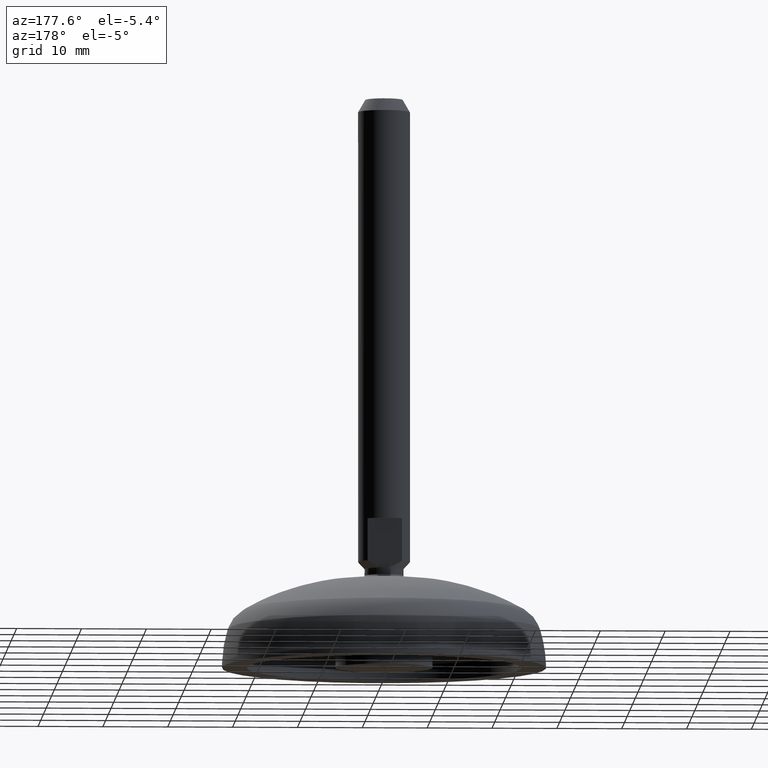
[diagram: clean part render]
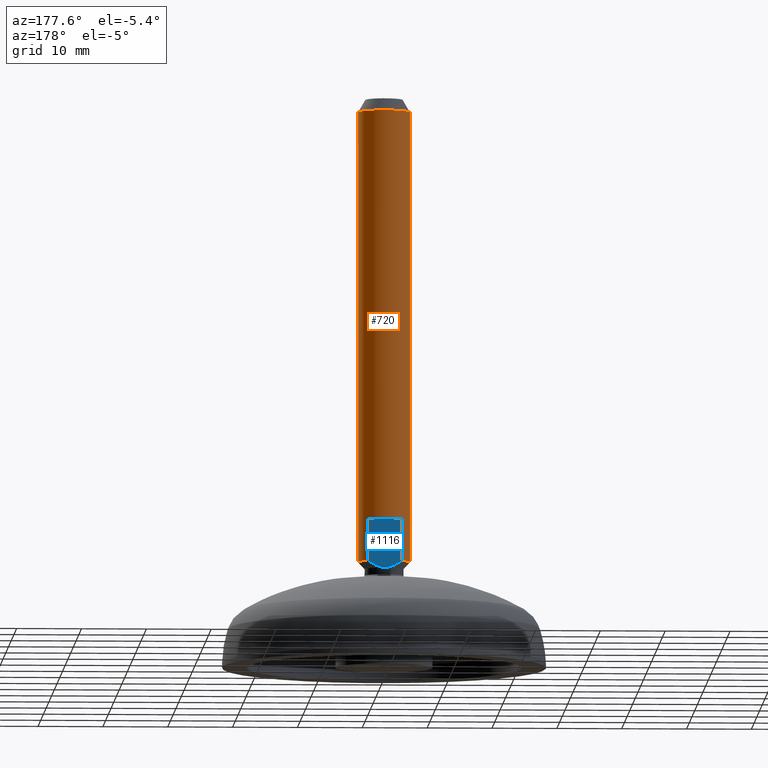
[diagram: same view with the hole feature highlighted: cylindrical wall and planar end face, labeled with their STEP entity ids]
A machine part, auxiliary view. The highlighted faces form one hole feature of diameter 8 mm: the cylindrical wall (entity #720, orange) and its adjacent planar end face (entity #1116, blue) — they share a circular edge in the B-rep.
Wall:
#595=CARTESIAN_POINT('',(0.000044111296350,-0.000003166976640,85.968672221026281));
#596=DIRECTION('',(-0.000000300065037,0.0,-0.999999999999955));
#597=DIRECTION('',(-0.999999999999955,0.0,0.000000300065037));
#598=AXIS2_PLACEMENT_3D('',#595,#596,#597);
#599=CYLINDRICAL_SURFACE('',#598,3.999998476067683);
#600=CARTESIAN_POINT('',(-3.999991971773162,-0.000003166976640,16.373945335259531));
#601=VERTEX_POINT('',#600);
#602=CARTESIAN_POINT('',(-3.999954364771156,-0.000003166976640,85.968673411285963));
#603=VERTEX_POINT('',#602);
#604=CARTESIAN_POINT('',(-3.999975247715812,-0.000003166976640,16.373945335254504));
#605=DIRECTION('',(0.000000300065037,0.0,0.999999999999955));
#606=VECTOR('',#605,69.594728076034585);
#607=LINE('',#604,#606);
#608=EDGE_CURVE('',#601,#603,#607,.T.);
#609=ORIENTED_EDGE('',*,*,#608,.F.);
#610=CARTESIAN_POINT('',(-2.645763705205930,-3.000003166976640,16.373944928902979));
#611=VERTEX_POINT('',#610);
#612=CARTESIAN_POINT('',(0.000023228351704,-0.000003166976640,16.373944134994833));
#613=DIRECTION('',(-0.000000300065037,0.0,-0.999999999999955));
#614=DIRECTION('',(-0.999999999999955,0.0,0.000000300065037));
#615=AXIS2_PLACEMENT_3D('',#612,#613,#614);
#616=CIRCLE('',#615,4.000023562153722);
#617=EDGE_CURVE('',#611,#601,#616,.T.);
#618=ORIENTED_EDGE('',*,*,#617,.F.);
#619=CARTESIAN_POINT('',(-2.645758212562657,-3.000003166976640,22.873924181436315));
#620=VERTEX_POINT('',#619);
#621=CARTESIAN_POINT('',(-2.645763705205931,-3.000003166976640,16.373944928902979));
#622=CARTESIAN_POINT('',(-2.645763476346413,-3.000003166976640,16.644776720555505));
#623=CARTESIAN_POINT('',(-2.645763247486892,-3.000003166976640,16.915608512208014));
#624=CARTESIAN_POINT('',(-2.645763018627362,-3.000003166976640,17.186440303860529));
#625=CARTESIAN_POINT('',(-2.645761416606073,-3.000003166976640,19.082268263052459));
#626=CARTESIAN_POINT('',(-2.645759814584460,-3.000003166976640,20.978096222244375));
#627=CARTESIAN_POINT('',(-2.645758212562481,-3.000003166976640,22.873924181436315));
#628=B_SPLINE_CURVE_WITH_KNOTS('',3,(#621,#622,#623,#624,#625,#626,#627),.UNSPECIFIED.,.F.,.U.,(4,3,4),(0.007187548279914,0.008000043654872,0.013687527532449),.UNSPECIFIED.);
#629=EDGE_CURVE('',#611,#620,#628,.T.);
#630=ORIENTED_EDGE('',*,*,#629,.T.);
#631=CARTESIAN_POINT('',(2.645807595618447,-3.000003166976640,22.873924181436315));
#632=VERTEX_POINT('',#631);
#633=CARTESIAN_POINT('',(0.000025178768036,-0.000003166976623,22.873924181436298));
#634=DIRECTION('',(0.0,0.0,1.0));
#635=DIRECTION('',(0.0,-1.0,0.0));
#636=AXIS2_PLACEMENT_3D('',#633,#634,#635);
#637=CIRCLE('',#636,4.000021219173773);
#638=EDGE_CURVE('',#620,#632,#637,.T.);
#639=ORIENTED_EDGE('',*,*,#638,.T.);
#640=CARTESIAN_POINT('',(2.645810161909338,-3.000003166976640,16.373943341086665));
#641=VERTEX_POINT('',#640);
#642=CARTESIAN_POINT('',(2.645808570098528,-3.000003166976640,22.873924181436536));
#643=CARTESIAN_POINT('',(2.645809034377124,-3.000003166976640,20.978096293106212));
#644=CARTESIAN_POINT('',(2.645809498655344,-3.000003166976640,19.082268404775878));
#645=CARTESIAN_POINT('',(2.645809962933240,-3.000003166976640,17.186440516445550));
#646=CARTESIAN_POINT('',(2.645810029258613,-3.000003166976640,16.915608124659258));
#647=CARTESIAN_POINT('',(2.645810095583978,-3.000003166976640,16.644775732872965));
#648=CARTESIAN_POINT('',(2.645810161909338,-3.000003166976640,16.373943341086665));
#649=B_SPLINE_CURVE_WITH_KNOTS('',3,(#642,#643,#644,#645,#646,#647,#648),.UNSPECIFIED.,.F.,.U.,(4,3,4),(0.007187546479511,0.012875030144503,0.013687527319862),.UNSPECIFIED.);
#650=EDGE_CURVE('',#632,#641,#649,.T.);
#651=ORIENTED_EDGE('',*,*,#650,.T.);
#652=CARTESIAN_POINT('',(2.645810161909338,2.999996833023360,16.373943341086665));
#653=VERTEX_POINT('',#652);
#654=CARTESIAN_POINT('',(0.000023228351704,-0.000003166976640,16.373944134994833));
#655=DIRECTION('',(-0.000000300065037,0.0,-0.999999999999955));
#656=DIRECTION('',(-0.999999999999955,0.0,0.000000300065037));
#657=AXIS2_PLACEMENT_3D('',#654,#655,#656);
#658=CIRCLE('',#657,4.000023562153722);
#659=EDGE_CURVE('',#653,#641,#658,.T.);
#660=ORIENTED_EDGE('',*,*,#659,.F.);
#661=CARTESIAN_POINT('',(2.645807595618447,2.999996833023360,22.873924181436315));
#662=VERTEX_POINT('',#661);
#663=CARTESIAN_POINT('',(2.645808570098528,2.999996833023360,22.873924181436536));
#664=CARTESIAN_POINT('',(2.645809034377124,2.999996833023360,20.978096293106212));
#665=CARTESIAN_POINT('',(2.645809498655344,2.999996833023360,19.082268404775874));
#666=CARTESIAN_POINT('',(2.645809962933240,2.999996833023360,17.186440516445536));
#667=CARTESIAN_POINT('',(2.645810029258613,2.999996833023360,16.915608124659251));
#668=CARTESIAN_POINT('',(2.645810095583978,2.999996833023360,16.644775732872965));
#669=CARTESIAN_POINT('',(2.645810161909338,2.999996833023360,16.373943341086679));
#670=B_SPLINE_CURVE_WITH_KNOTS('',3,(#663,#664,#665,#666,#667,#668,#669),.UNSPECIFIED.,.F.,.U.,(4,3,4),(0.007187546479511,0.012875030144503,0.013687527319862),.UNSPECIFIED.);
#671=EDGE_CURVE('',#662,#653,#670,.T.);
#672=ORIENTED_EDGE('',*,*,#671,.F.);
#673=CARTESIAN_POINT('',(-2.645758212562657,2.999996833023360,22.873924181436315));
#674=VERTEX_POINT('',#673);
#675=CARTESIAN_POINT('',(0.000025178768036,-0.000003166976623,22.873924181436298));
#676=DIRECTION('',(0.0,0.0,-1.0));
#677=DIRECTION('',(0.0,1.0,0.0));
#678=AXIS2_PLACEMENT_3D('',#675,#676,#677);
#679=CIRCLE('',#678,4.000021219173773);
#680=EDGE_CURVE('',#674,#662,#679,.T.);
#681=ORIENTED_EDGE('',*,*,#680,.F.);
#682=CARTESIAN_POINT('',(-2.645763705207422,2.999996833023360,16.373944928903406));
#683=VERTEX_POINT('',#682);
#684=CARTESIAN_POINT('',(-2.645763705205931,2.999996833023360,16.373944928903406));
#685=CARTESIAN_POINT('',(-2.645763476346413,2.999996833023360,16.644776720555782));
#686=CARTESIAN_POINT('',(-2.645763247486892,2.999996833023360,16.915608512208149));
#687=CARTESIAN_POINT('',(-2.645763018627362,2.999996833023360,17.186440303860529));
#688=CARTESIAN_POINT('',(-2.645761416606073,2.999996833023360,19.082268263052448));
#689=CARTESIAN_POINT('',(-2.645759814584460,2.999996833023360,20.978096222244375));
#690=CARTESIAN_POINT('',(-2.645758212562481,2.999996833023360,22.873924181436315));
#691=B_SPLINE_CURVE_WITH_KNOTS('',3,(#684,#685,#686,#687,#688,#689,#690),.UNSPECIFIED.,.F.,.U.,(4,3,4),(0.007187548279914,0.008000043654872,0.013687527532449),.UNSPECIFIED.);
#692=EDGE_CURVE('',#683,#674,#691,.T.);
#693=ORIENTED_EDGE('',*,*,#692,.F.);
#694=CARTESIAN_POINT('',(0.000023228351704,-0.000003166976640,16.373944134994833));
#695=DIRECTION('',(-0.000000300065037,0.0,-0.999999999999955));
#696=DIRECTION('',(-0.999999999999955,0.0,0.000000300065037));
#697=AXIS2_PLACEMENT_3D('',#694,#695,#696);
#698=CIRCLE('',#697,4.000023562153722);
#699=EDGE_CURVE('',#601,#683,#698,.T.);
#700=ORIENTED_EDGE('',*,*,#699,.F.);
#701=ORIENTED_EDGE('',*,*,#608,.T.);
#702=CARTESIAN_POINT('',(4.000042587363851,-0.000003166976640,85.968671010766585));
#703=VERTEX_POINT('',#702);
#704=CARTESIAN_POINT('',(0.000044111296347,-0.000003166976640,85.968672211026274));
#705=DIRECTION('',(-0.000000300065037,0.0,-0.999999999999955));
#706=DIRECTION('',(-0.999999999999955,0.0,0.000000300065037));
#707=AXIS2_PLACEMENT_3D('',#704,#705,#706);
#708=CIRCLE('',#707,3.999998476067683);
#709=EDGE_CURVE('',#603,#703,#708,.T.);
#710=ORIENTED_EDGE('',*,*,#709,.T.);
#711=CARTESIAN_POINT('',(0.000044111296347,-0.000003166976640,85.968672211026274));
#712=DIRECTION('',(-0.000000300065037,0.0,-0.999999999999955));
#713=DIRECTION('',(-0.999999999999955,0.0,0.000000300065037));
#714=AXIS2_PLACEMENT_3D('',#711,#712,#713);
#715=CIRCLE('',#714,3.999998476067683);
#716=EDGE_CURVE('',#703,#603,#715,.T.);
#717=ORIENTED_EDGE('',*,*,#716,.T.);
#718=EDGE_LOOP('',(#609,#618,#630,#639,#651,#660,#672,#681,#693,#700,#701,#710,#717));
#719=FACE_OUTER_BOUND('',#718,.T.);
#720=ADVANCED_FACE('',(#719),#599,.T.);
End face:
#652=CARTESIAN_POINT('',(2.645810161909338,2.999996833023360,16.373943341086665));
#653=VERTEX_POINT('',#652);
#661=CARTESIAN_POINT('',(2.645807595618447,2.999996833023360,22.873924181436315));
#662=VERTEX_POINT('',#661);
#663=CARTESIAN_POINT('',(2.645808570098528,2.999996833023360,22.873924181436536));
#664=CARTESIAN_POINT('',(2.645809034377124,2.999996833023360,20.978096293106212));
#665=CARTESIAN_POINT('',(2.645809498655344,2.999996833023360,19.082268404775874));
#666=CARTESIAN_POINT('',(2.645809962933240,2.999996833023360,17.186440516445536));
#667=CARTESIAN_POINT('',(2.645810029258613,2.999996833023360,16.915608124659251));
#668=CARTESIAN_POINT('',(2.645810095583978,2.999996833023360,16.644775732872965));
#669=CARTESIAN_POINT('',(2.645810161909338,2.999996833023360,16.373943341086679));
#670=B_SPLINE_CURVE_WITH_KNOTS('',3,(#663,#664,#665,#666,#667,#668,#669),.UNSPECIFIED.,.F.,.U.,(4,3,4),(0.007187546479511,0.012875030144503,0.013687527319862),.UNSPECIFIED.);
#671=EDGE_CURVE('',#662,#653,#670,.T.);
#673=CARTESIAN_POINT('',(-2.645758212562657,2.999996833023360,22.873924181436315));
#674=VERTEX_POINT('',#673);
#682=CARTESIAN_POINT('',(-2.645763705207422,2.999996833023360,16.373944928903406));
#683=VERTEX_POINT('',#682);
#684=CARTESIAN_POINT('',(-2.645763705205931,2.999996833023360,16.373944928903406));
#685=CARTESIAN_POINT('',(-2.645763476346413,2.999996833023360,16.644776720555782));
#686=CARTESIAN_POINT('',(-2.645763247486892,2.999996833023360,16.915608512208149));
#687=CARTESIAN_POINT('',(-2.645763018627362,2.999996833023360,17.186440303860529));
#688=CARTESIAN_POINT('',(-2.645761416606073,2.999996833023360,19.082268263052448));
#689=CARTESIAN_POINT('',(-2.645759814584460,2.999996833023360,20.978096222244375));
#690=CARTESIAN_POINT('',(-2.645758212562481,2.999996833023360,22.873924181436315));
#691=B_SPLINE_CURVE_WITH_KNOTS('',3,(#684,#685,#686,#687,#688,#689,#690),.UNSPECIFIED.,.F.,.U.,(4,3,4),(0.007187548279914,0.008000043654872,0.013687527532449),.UNSPECIFIED.);
#692=EDGE_CURVE('',#683,#674,#691,.T.);
#747=CARTESIAN_POINT('',(0.000022793426677,2.999996833023357,15.282088125120207));
#748=VERTEX_POINT('',#747);
#749=CARTESIAN_POINT('',(2.645810161909338,2.999996833023360,16.373943341086665));
#750=CARTESIAN_POINT('',(2.449052377870417,2.999996833023360,16.231848241064366));
#751=CARTESIAN_POINT('',(2.248140700327918,2.999996833023360,16.095506305889653));
#752=CARTESIAN_POINT('',(1.836331898045979,2.999996833023360,15.842490184448769));
#753=CARTESIAN_POINT('',(1.625177884263523,2.999996833023360,15.725491319863028));
#754=CARTESIAN_POINT('',(1.295793950921737,2.999996833023360,15.572912624191778));
#755=CARTESIAN_POINT('',(1.183864976390488,2.999996833023360,15.525919203914498));
#756=CARTESIAN_POINT('',(0.954527172513798,2.999996833023359,15.441858622262561));
#757=CARTESIAN_POINT('',(0.838098784630705,2.999996833023360,15.405214820766702));
#758=CARTESIAN_POINT('',(0.603332968674916,2.999996833023359,15.345341275510441));
#759=CARTESIAN_POINT('',(0.484685164112519,2.999996833023360,15.322003370169181));
#760=CARTESIAN_POINT('',(0.244506480525376,2.999996833023360,15.290368335142343));
#761=CARTESIAN_POINT('',(0.122336153885126,2.999996833023360,15.282088083641909));
#762=CARTESIAN_POINT('',(0.000022793426677,2.999996833023360,15.282088125120220));
#763=B_SPLINE_CURVE_WITH_KNOTS('',3,(#749,#750,#751,#752,#753,#754,#755,#756,#757,#758,#759,#760,#761,#762),.UNSPECIFIED.,.F.,.U.,(4,2,2,2,2,2,4),(0.0,0.250000000000001,0.500000000000001,0.625000000000001,0.750000000000001,0.875000000000000,1.0),.UNSPECIFIED.);
#764=EDGE_CURVE('',#653,#748,#763,.T.);
#822=CARTESIAN_POINT('',(0.000022793426678,2.999996833023360,15.282088125120220));
#823=CARTESIAN_POINT('',(-0.244510717188065,2.999996833023360,15.282088208045234));
#824=CARTESIAN_POINT('',(-0.483895231750380,2.999996833023359,15.315018746509448));
#825=CARTESIAN_POINT('',(-0.836657815569131,2.999996833023360,15.404797006609538));
#826=CARTESIAN_POINT('',(-0.953749623776378,2.999996833023360,15.441630902545814));
#827=CARTESIAN_POINT('',(-1.182267379808178,2.999996833023360,15.525311689947580));
#828=CARTESIAN_POINT('',(-1.293983340954004,2.999996833023360,15.572151079883128));
#829=CARTESIAN_POINT('',(-1.623134358296858,2.999996833023360,15.724458196225791));
#830=CARTESIAN_POINT('',(-1.834663489810542,2.999996833023359,15.841536091884478));
#831=CARTESIAN_POINT('',(-2.247765562309425,2.999996833023360,16.095264272511638));
#832=CARTESIAN_POINT('',(-2.449404107509872,2.999996833023360,16.232137212932898));
#833=CARTESIAN_POINT('',(-2.645763705207076,2.999996833023360,16.373944928903814));
#834=B_SPLINE_CURVE_WITH_KNOTS('',3,(#822,#823,#824,#825,#826,#827,#828,#829,#830,#831,#832,#833),.UNSPECIFIED.,.F.,.U.,(4,2,2,2,2,4),(0.0,0.250000000000000,0.375000000000000,0.500000000000000,0.750000000000000,1.0),.UNSPECIFIED.);
#835=EDGE_CURVE('',#748,#683,#834,.T.);
#1095=CARTESIAN_POINT('',(-2.645758212562657,2.999996833023360,22.873924181436315));
#1096=DIRECTION('',(1.0,0.0,0.0));
#1097=VECTOR('',#1096,5.291565808181103);
#1098=LINE('',#1095,#1097);
#1099=EDGE_CURVE('',#674,#662,#1098,.T.);
#1104=CARTESIAN_POINT('',(-2.910342398563261,2.999996833023360,14.902496322304390));
#1105=DIRECTION('',(0.0,1.0,0.0));
#1106=DIRECTION('',(0.0,0.0,1.0));
#1107=AXIS2_PLACEMENT_3D('',#1104,#1105,#1106);
#1108=PLANE('',#1107);
#1109=ORIENTED_EDGE('',*,*,#671,.T.);
#1110=ORIENTED_EDGE('',*,*,#764,.T.);
#1111=ORIENTED_EDGE('',*,*,#835,.T.);
#1112=ORIENTED_EDGE('',*,*,#692,.T.);
#1113=ORIENTED_EDGE('',*,*,#1099,.T.);
#1114=EDGE_LOOP('',(#1109,#1110,#1111,#1112,#1113));
#1115=FACE_OUTER_BOUND('',#1114,.T.);
#1116=ADVANCED_FACE('',(#1115),#1108,.T.);